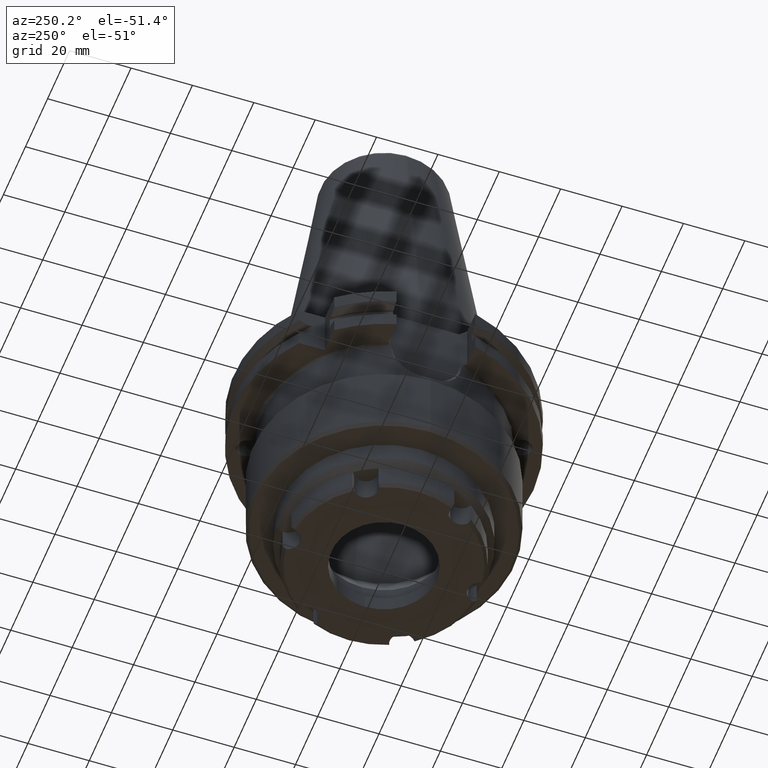
[diagram: clean part render]
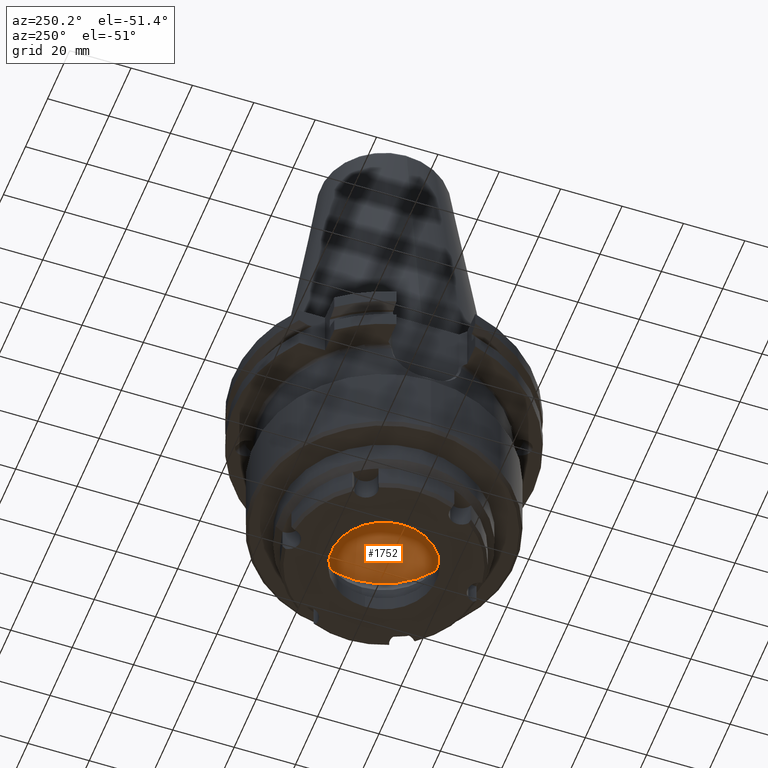
[diagram: same view with one face highlighted and labeled with its STEP entity id]
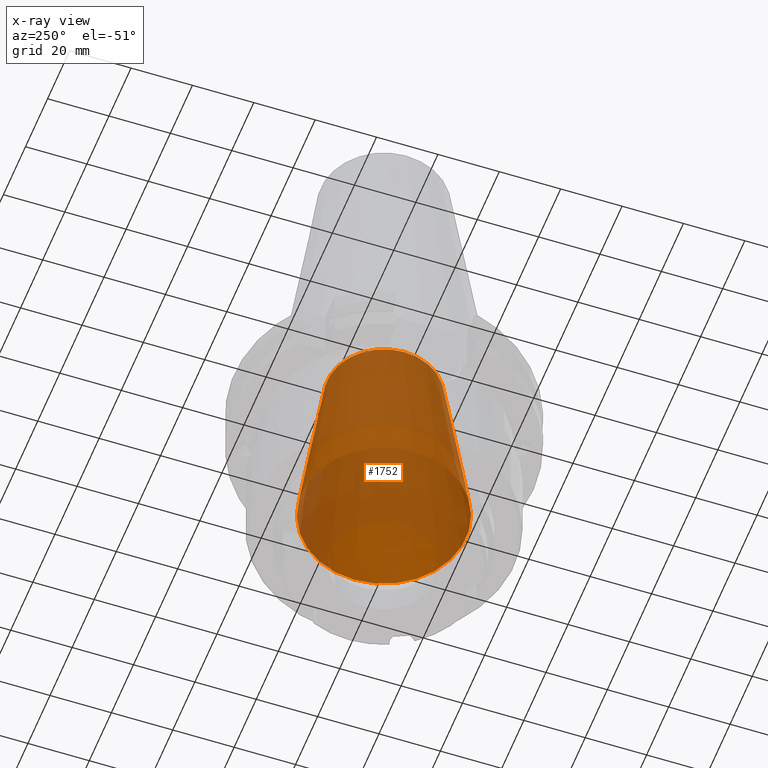
[diagram: x-ray of the same camera — body ghosted, the highlighted face saturated]
A machine part, auxiliary view. The second image highlights one B-rep face of the part: STEP entity #1752.
The next image is the same camera in x-ray: the body ghosted, the highlighted face saturated — about 73% of this face is hidden behind the body in this view.
In plain terms, the highlighted conical surface has half-angle 8 deg.
Its self-contained STEP definition (entity closure, byte-faithful):
#48=CONICAL_SURFACE('',#1967,26.7328989112652,0.139626340159549);
#832=ORIENTED_EDGE('',*,*,#1079,.T.);
#833=ORIENTED_EDGE('',*,*,#1082,.F.);
#1079=EDGE_CURVE('',#1246,#1246,#1340,.T.);
#1082=EDGE_CURVE('',#1249,#1249,#1343,.T.);
#1246=VERTEX_POINT('',#3174);
#1249=VERTEX_POINT('',#3184);
#1340=CIRCLE('',#1959,18.4999999999998);
#1343=CIRCLE('',#1966,26.7328989112652);
#1470=EDGE_LOOP('',(#832));
#1471=EDGE_LOOP('',(#833));
#1598=FACE_BOUND('',#1470,.T.);
#1599=FACE_BOUND('',#1471,.T.);
#1752=ADVANCED_FACE('',(#1598,#1599),#48,.F.);
#1959=AXIS2_PLACEMENT_3D('',#3173,#2458,#2459);
#1966=AXIS2_PLACEMENT_3D('',#3183,#2472,#2473);
#1967=AXIS2_PLACEMENT_3D('',#3185,#2474,#2475);
#2458=DIRECTION('',(0.,0.,1.));
#2459=DIRECTION('',(1.,0.,0.));
#2472=DIRECTION('',(0.,0.,1.));
#2473=DIRECTION('',(1.,0.,0.));
#2474=DIRECTION('',(0.,0.,-1.));
#2475=DIRECTION('',(-1.,0.,0.));
#3173=CARTESIAN_POINT('',(0.,0.,6.22193882663591));
#3174=CARTESIAN_POINT('',(18.4999999999998,0.,6.22193882663591));
#3183=CARTESIAN_POINT('',(0.,0.,-52.3581808140306));
#3184=CARTESIAN_POINT('',(26.7328989112652,0.,-52.3581808140306));
#3185=CARTESIAN_POINT('',(0.,0.,-52.3581808140306));